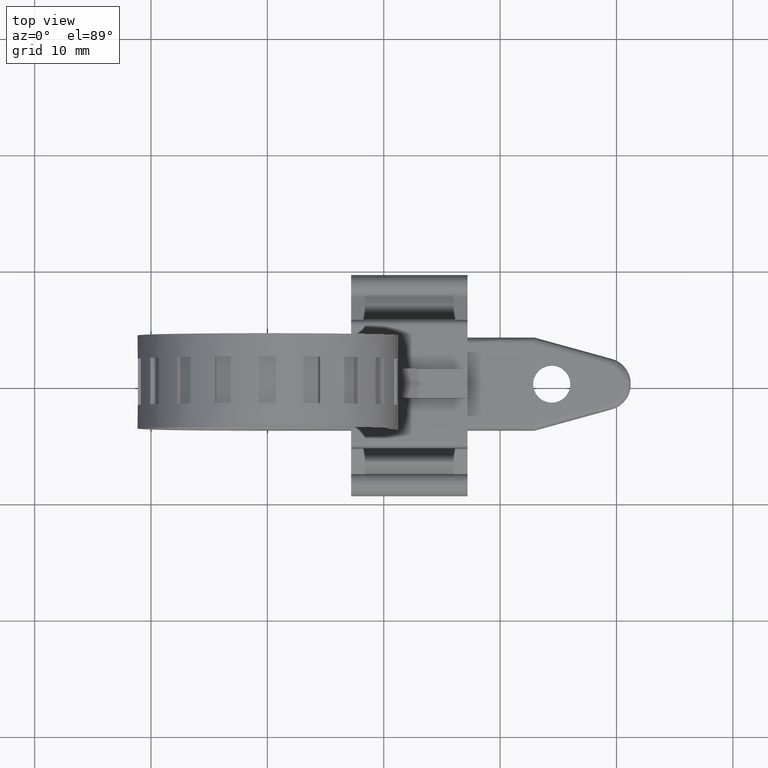
[diagram: clean part render]
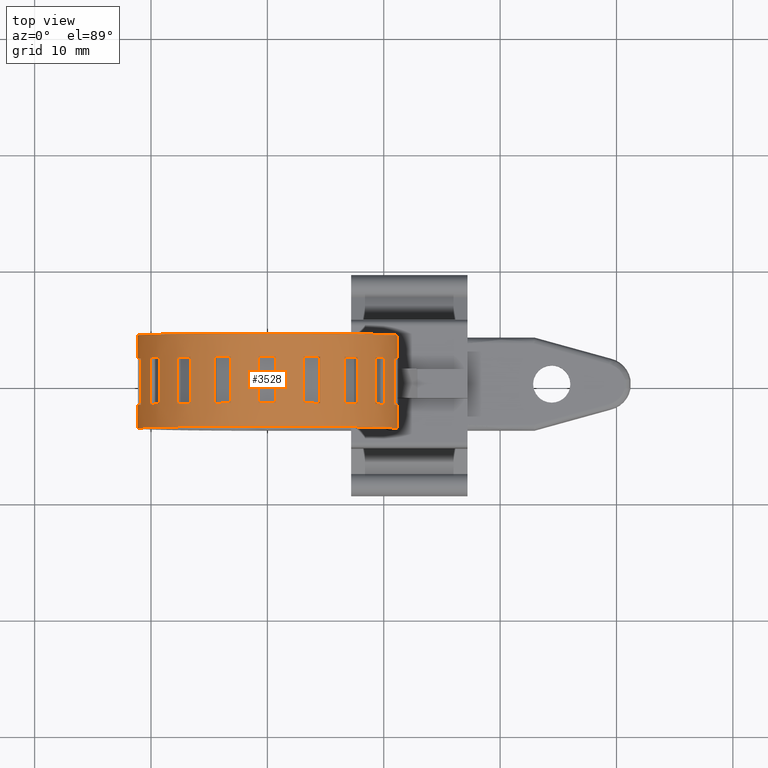
[diagram: same view with one face highlighted and labeled with its STEP entity id]
A machine part, top view. The second image highlights one B-rep face of the part: STEP entity #3528.
In plain terms, the highlighted face is a freeform B-spline surface patch.
Its self-contained STEP definition (entity closure, byte-faithful):
#1247=CARTESIAN_POINT('',(0.0,-2.0,-11.199999999999880));
#1248=VERTEX_POINT('',#1247);
#1254=CARTESIAN_POINT('',(-0.750000000000000,-2.0,-11.174860178096161));
#1255=VERTEX_POINT('',#1254);
#1256=CARTESIAN_POINT('',(0.0,-2.0,-11.199999999999880));
#1257=CARTESIAN_POINT('',(-0.250187271056418,-2.000000000000001,-11.200001043256970));
#1258=CARTESIAN_POINT('',(-0.500374567385685,-2.000000000000001,-11.191614302703069));
#1259=CARTESIAN_POINT('',(-0.750000000000000,-2.0,-11.174860178096161));
#1260=B_SPLINE_CURVE_WITH_KNOTS('',3,(#1256,#1257,#1258,#1259),.UNSPECIFIED.,.F.,.U.,(4,4),(5.774903E-011,0.750563855465260),.UNSPECIFIED.);
#1261=EDGE_CURVE('',#1248,#1255,#1260,.T.);
#1290=CARTESIAN_POINT('',(-0.750000000000000,2.0,-11.174860178096161));
#1291=VERTEX_POINT('',#1290);
#1297=CARTESIAN_POINT('',(0.0,2.0,-11.199999999999999));
#1298=VERTEX_POINT('',#1297);
#1299=CARTESIAN_POINT('',(0.0,2.0,-11.199999999999999));
#1300=CARTESIAN_POINT('',(-0.250187271056418,1.999999999999998,-11.200001043257011));
#1301=CARTESIAN_POINT('',(-0.500374567385682,2.0,-11.191614302703060));
#1302=CARTESIAN_POINT('',(-0.750000000000000,2.0,-11.174860178096161));
#1303=B_SPLINE_CURVE_WITH_KNOTS('',3,(#1299,#1300,#1301,#1302),.UNSPECIFIED.,.F.,.U.,(4,4),(5.774725E-011,0.750563855465263),.UNSPECIFIED.);
#1304=EDGE_CURVE('',#1298,#1291,#1303,.T.);
#1319=CARTESIAN_POINT('',(-0.750000000000000,-2.0,-11.174860178096161));
#1320=CARTESIAN_POINT('',(-0.750000000000000,2.0,-11.174860178096161));
#1321=QUASI_UNIFORM_CURVE('',1,(#1319,#1320),.UNSPECIFIED.,.F.,.U.);
#1322=EDGE_CURVE('',#1255,#1291,#1321,.T.);
#1387=CARTESIAN_POINT('',(-3.117257814167320,-2.0,-10.757448755165520));
#1388=VERTEX_POINT('',#1387);
#1389=CARTESIAN_POINT('',(-4.526796745346190,-2.0,-10.244418540177019));
#1390=VERTEX_POINT('',#1389);
#1391=CARTESIAN_POINT('',(-3.117257814167320,-2.0,-10.757448755165520));
#1392=CARTESIAN_POINT('',(-3.597864011099468,-1.999999999999998,-10.618190867376519));
#1393=CARTESIAN_POINT('',(-4.069119394183680,-2.000000000000011,-10.446672816022700));
#1394=CARTESIAN_POINT('',(-4.526796745346190,-2.0,-10.244418540177019));
#1395=B_SPLINE_CURVE_WITH_KNOTS('',3,(#1391,#1392,#1393,#1394),.UNSPECIFIED.,.F.,.U.,(4,4),(1.347966E-010,1.501127710949779),.UNSPECIFIED.);
#1396=EDGE_CURVE('',#1388,#1390,#1395,.T.);
#1417=CARTESIAN_POINT('',(-3.117257814167320,2.0,-10.757448755165520));
#1418=VERTEX_POINT('',#1417);
#1425=CARTESIAN_POINT('',(-4.526796745346190,2.0,-10.244418540177019));
#1426=VERTEX_POINT('',#1425);
#1432=CARTESIAN_POINT('',(-3.117257814167320,2.0,-10.757448755165520));
#1433=CARTESIAN_POINT('',(-3.597864011099468,1.999999999999998,-10.618190867376519));
#1434=CARTESIAN_POINT('',(-4.069119394183680,2.000000000000011,-10.446672816022700));
#1435=CARTESIAN_POINT('',(-4.526796745346190,2.0,-10.244418540177019));
#1436=B_SPLINE_CURVE_WITH_KNOTS('',3,(#1432,#1433,#1434,#1435),.UNSPECIFIED.,.F.,.U.,(4,4),(1.347966E-010,1.501127710949779),.UNSPECIFIED.);
#1437=EDGE_CURVE('',#1418,#1426,#1436,.T.);
#1447=CARTESIAN_POINT('',(-4.526796745346190,-2.0,-10.244418540177019));
#1448=CARTESIAN_POINT('',(-4.526796745346190,2.0,-10.244418540177019));
#1449=QUASI_UNIFORM_CURVE('',1,(#1447,#1448),.UNSPECIFIED.,.F.,.U.);
#1450=EDGE_CURVE('',#1390,#1426,#1449,.T.);
#1463=CARTESIAN_POINT('',(-3.117257814167320,2.0,-10.757448755165520));
#1464=CARTESIAN_POINT('',(-3.117257814167320,-2.0,-10.757448755165520));
#1465=QUASI_UNIFORM_CURVE('',1,(#1463,#1464),.UNSPECIFIED.,.F.,.U.);
#1466=EDGE_CURVE('',#1418,#1388,#1465,.T.);
#1515=CARTESIAN_POINT('',(-6.608528330120491,-2.0,-9.042530249327031));
#1516=VERTEX_POINT('',#1515);
#1517=CARTESIAN_POINT('',(-7.757594994798960,-2.0,-8.078348834797220));
#1518=VERTEX_POINT('',#1517);
#1519=CARTESIAN_POINT('',(-6.608528330120491,-2.0,-9.042530249327031));
#1520=CARTESIAN_POINT('',(-7.012521426680162,-1.999999999999999,-8.747293671762556));
#1521=CARTESIAN_POINT('',(-7.396693912800759,-1.999999999999999,-8.424940594192325));
#1522=CARTESIAN_POINT('',(-7.757594994798960,-2.0,-8.078348834797220));
#1523=B_SPLINE_CURVE_WITH_KNOTS('',3,(#1519,#1520,#1521,#1522),.UNSPECIFIED.,.F.,.U.,(4,4),(1.348550E-010,1.501127710949775),.UNSPECIFIED.);
#1524=EDGE_CURVE('',#1516,#1518,#1523,.T.);
#1545=CARTESIAN_POINT('',(-6.608528330120491,2.0,-9.042530249327031));
#1546=VERTEX_POINT('',#1545);
#1553=CARTESIAN_POINT('',(-7.757594994798960,2.0,-8.078348834797220));
#1554=VERTEX_POINT('',#1553);
#1560=CARTESIAN_POINT('',(-6.608528330120491,2.0,-9.042530249327031));
#1561=CARTESIAN_POINT('',(-7.012521426680162,1.999999999999999,-8.747293671762556));
#1562=CARTESIAN_POINT('',(-7.396693912800759,1.999999999999999,-8.424940594192325));
#1563=CARTESIAN_POINT('',(-7.757594994798960,2.0,-8.078348834797220));
#1564=B_SPLINE_CURVE_WITH_KNOTS('',3,(#1560,#1561,#1562,#1563),.UNSPECIFIED.,.F.,.U.,(4,4),(1.348550E-010,1.501127710949775),.UNSPECIFIED.);
#1565=EDGE_CURVE('',#1546,#1554,#1564,.T.);
#1575=CARTESIAN_POINT('',(-7.757594994798960,-2.0,-8.078348834797220));
#1576=CARTESIAN_POINT('',(-7.757594994798960,2.0,-8.078348834797220));
#1577=QUASI_UNIFORM_CURVE('',1,(#1575,#1576),.UNSPECIFIED.,.F.,.U.);
#1578=EDGE_CURVE('',#1518,#1554,#1577,.T.);
#1591=CARTESIAN_POINT('',(-6.608528330120491,2.0,-9.042530249327031));
#1592=CARTESIAN_POINT('',(-6.608528330120491,-2.0,-9.042530249327031));
#1593=QUASI_UNIFORM_CURVE('',1,(#1591,#1592),.UNSPECIFIED.,.F.,.U.);
#1594=EDGE_CURVE('',#1546,#1516,#1593,.T.);
#1643=CARTESIAN_POINT('',(-9.302712797970370,-2.0,-6.236949141886420));
#1644=VERTEX_POINT('',#1643);
#1645=CARTESIAN_POINT('',(-10.052712797970379,-2.0,-4.937911036209759));
#1646=VERTEX_POINT('',#1645);
#1647=CARTESIAN_POINT('',(-9.302712797970370,-2.0,-6.236949141886420));
#1648=CARTESIAN_POINT('',(-9.581365282119663,-2.0,-5.821343719645205));
#1649=CARTESIAN_POINT('',(-9.832118066007803,-1.999999999999995,-5.387036208761663));
#1650=CARTESIAN_POINT('',(-10.052712797970379,-2.0,-4.937911036209759));
#1651=B_SPLINE_CURVE_WITH_KNOTS('',3,(#1647,#1648,#1649,#1650),.UNSPECIFIED.,.F.,.U.,(4,4),(1.348912E-010,1.501127710949777),.UNSPECIFIED.);
#1652=EDGE_CURVE('',#1644,#1646,#1651,.T.);
#1673=CARTESIAN_POINT('',(-9.302712797970370,2.0,-6.236949141886420));
#1674=VERTEX_POINT('',#1673);
#1681=CARTESIAN_POINT('',(-10.052712797970379,2.0,-4.937911036209759));
#1682=VERTEX_POINT('',#1681);
#1688=CARTESIAN_POINT('',(-9.302712797970370,2.0,-6.236949141886420));
#1689=CARTESIAN_POINT('',(-9.581365282119663,2.0,-5.821343719645205));
#1690=CARTESIAN_POINT('',(-9.832118066007803,1.999999999999995,-5.387036208761663));
#1691=CARTESIAN_POINT('',(-10.052712797970379,2.0,-4.937911036209759));
#1692=B_SPLINE_CURVE_WITH_KNOTS('',3,(#1688,#1689,#1690,#1691),.UNSPECIFIED.,.F.,.U.,(4,4),(1.348912E-010,1.501127710949777),.UNSPECIFIED.);
#1693=EDGE_CURVE('',#1674,#1682,#1692,.T.);
#1703=CARTESIAN_POINT('',(-10.052712797970379,-2.0,-4.937911036209759));
#1704=CARTESIAN_POINT('',(-10.052712797970379,2.0,-4.937911036209759));
#1705=QUASI_UNIFORM_CURVE('',1,(#1703,#1704),.UNSPECIFIED.,.F.,.U.);
#1706=EDGE_CURVE('',#1646,#1682,#1705,.T.);
#1719=CARTESIAN_POINT('',(-9.302712797970370,2.0,-6.236949141886420));
#1720=CARTESIAN_POINT('',(-9.302712797970370,-2.0,-6.236949141886420));
#1721=QUASI_UNIFORM_CURVE('',1,(#1719,#1720),.UNSPECIFIED.,.F.,.U.);
#1722=EDGE_CURVE('',#1674,#1644,#1721,.T.);
#1771=CARTESIAN_POINT('',(-10.874852808966301,-2.0,-2.679099920368310));
#1772=VERTEX_POINT('',#1771);
#1773=CARTESIAN_POINT('',(-11.135325075466699,-2.0,-1.201888290849996));
#1774=VERTEX_POINT('',#1773);
#1775=CARTESIAN_POINT('',(-10.874852808966301,-2.0,-2.679099920368310));
#1776=CARTESIAN_POINT('',(-10.994555530454679,-2.0,-2.193254346802141));
#1777=CARTESIAN_POINT('',(-11.081643350986729,-2.000000000000003,-1.699374900402291));
#1778=CARTESIAN_POINT('',(-11.135325075466699,-2.0,-1.201888290849996));
#1779=B_SPLINE_CURVE_WITH_KNOTS('',3,(#1775,#1776,#1777,#1778),.UNSPECIFIED.,.F.,.U.,(4,4),(1.348710E-010,1.501127710949773),.UNSPECIFIED.);
#1780=EDGE_CURVE('',#1772,#1774,#1779,.T.);
#1801=CARTESIAN_POINT('',(-10.874852808966301,2.0,-2.679099920368310));
#1802=VERTEX_POINT('',#1801);
#1809=CARTESIAN_POINT('',(-11.135325075466699,2.0,-1.201888290849996));
#1810=VERTEX_POINT('',#1809);
#1816=CARTESIAN_POINT('',(-10.874852808966301,2.0,-2.679099920368310));
#1817=CARTESIAN_POINT('',(-10.994555530454679,2.0,-2.193254346802141));
#1818=CARTESIAN_POINT('',(-11.081643350986729,2.000000000000003,-1.699374900402291));
#1819=CARTESIAN_POINT('',(-11.135325075466699,2.0,-1.201888290849996));
#1820=B_SPLINE_CURVE_WITH_KNOTS('',3,(#1816,#1817,#1818,#1819),.UNSPECIFIED.,.F.,.U.,(4,4),(1.348710E-010,1.501127710949773),.UNSPECIFIED.);
#1821=EDGE_CURVE('',#1802,#1810,#1820,.T.);
#1831=CARTESIAN_POINT('',(-11.135325075466699,-2.0,-1.201888290849996));
#1832=CARTESIAN_POINT('',(-11.135325075466699,2.0,-1.201888290849996));
#1833=QUASI_UNIFORM_CURVE('',1,(#1831,#1832),.UNSPECIFIED.,.F.,.U.);
#1834=EDGE_CURVE('',#1774,#1810,#1833,.T.);
#1847=CARTESIAN_POINT('',(-10.874852808966301,2.0,-2.679099920368310));
#1848=CARTESIAN_POINT('',(-10.874852808966301,-2.0,-2.679099920368310));
#1849=QUASI_UNIFORM_CURVE('',1,(#1847,#1848),.UNSPECIFIED.,.F.,.U.);
#1850=EDGE_CURVE('',#1802,#1772,#1849,.T.);
#1899=CARTESIAN_POINT('',(-11.135325075466699,-2.0,1.201888290849988));
#1900=VERTEX_POINT('',#1899);
#1901=CARTESIAN_POINT('',(-10.874852808966301,-2.0,2.679099920368300));
#1902=VERTEX_POINT('',#1901);
#1903=CARTESIAN_POINT('',(-11.135325075466699,-2.0,1.201888290849988));
#1904=CARTESIAN_POINT('',(-11.081639843272820,-2.000000000000001,1.699374648524388));
#1905=CARTESIAN_POINT('',(-10.994558988240820,-1.999999999999998,2.193255015704151));
#1906=CARTESIAN_POINT('',(-10.874852808966301,-2.0,2.679099920368300));
#1907=B_SPLINE_CURVE_WITH_KNOTS('',3,(#1903,#1904,#1905,#1906),.UNSPECIFIED.,.F.,.U.,(4,4),(1.348237E-010,1.501127710949771),.UNSPECIFIED.);
#1908=EDGE_CURVE('',#1900,#1902,#1907,.T.);
#1929=CARTESIAN_POINT('',(-11.135325075466699,2.0,1.201888290849988));
#1930=VERTEX_POINT('',#1929);
#1937=CARTESIAN_POINT('',(-10.874852808966301,2.0,2.679099920368300));
#1938=VERTEX_POINT('',#1937);
#1944=CARTESIAN_POINT('',(-11.135325075466699,2.0,1.201888290849988));
#1945=CARTESIAN_POINT('',(-11.081639843272820,2.000000000000001,1.699374648524388));
#1946=CARTESIAN_POINT('',(-10.994558988240820,1.999999999999998,2.193255015704151));
#1947=CARTESIAN_POINT('',(-10.874852808966301,2.0,2.679099920368300));
#1948=B_SPLINE_CURVE_WITH_KNOTS('',3,(#1944,#1945,#1946,#1947),.UNSPECIFIED.,.F.,.U.,(4,4),(1.348237E-010,1.501127710949771),.UNSPECIFIED.);
#1949=EDGE_CURVE('',#1930,#1938,#1948,.T.);
#1959=CARTESIAN_POINT('',(-10.874852808966301,-2.0,2.679099920368300));
#1960=CARTESIAN_POINT('',(-10.874852808966301,2.0,2.679099920368300));
#1961=QUASI_UNIFORM_CURVE('',1,(#1959,#1960),.UNSPECIFIED.,.F.,.U.);
#1962=EDGE_CURVE('',#1902,#1938,#1961,.T.);
#1975=CARTESIAN_POINT('',(-11.135325075466699,2.0,1.201888290849988));
#1976=CARTESIAN_POINT('',(-11.135325075466699,-2.0,1.201888290849988));
#1977=QUASI_UNIFORM_CURVE('',1,(#1975,#1976),.UNSPECIFIED.,.F.,.U.);
#1978=EDGE_CURVE('',#1930,#1900,#1977,.T.);
#2027=CARTESIAN_POINT('',(-10.052712797970379,-2.0,4.937911036209750));
#2028=VERTEX_POINT('',#2027);
#2029=CARTESIAN_POINT('',(-9.302712797970381,-2.0,6.236949141886410));
#2030=VERTEX_POINT('',#2029);
#2031=CARTESIAN_POINT('',(-10.052712797970379,-2.0,4.937911036209750));
#2032=CARTESIAN_POINT('',(-9.832114186433559,-2.0,5.387033877431266));
#2033=CARTESIAN_POINT('',(-9.581369240898177,-2.000000000000003,5.821345913789861));
#2034=CARTESIAN_POINT('',(-9.302712797970381,-2.0,6.236949141886410));
#2035=B_SPLINE_CURVE_WITH_KNOTS('',3,(#2031,#2032,#2033,#2034),.UNSPECIFIED.,.F.,.U.,(4,4),(1.348577E-010,1.501127710949773),.UNSPECIFIED.);
#2036=EDGE_CURVE('',#2028,#2030,#2035,.T.);
#2057=CARTESIAN_POINT('',(-10.052712797970379,2.0,4.937911036209750));
#2058=VERTEX_POINT('',#2057);
#2065=CARTESIAN_POINT('',(-9.302712797970381,2.0,6.236949141886410));
#2066=VERTEX_POINT('',#2065);
#2072=CARTESIAN_POINT('',(-10.052712797970379,2.0,4.937911036209750));
#2073=CARTESIAN_POINT('',(-9.832114186433559,2.0,5.387033877431266));
#2074=CARTESIAN_POINT('',(-9.581369240898177,2.000000000000003,5.821345913789861));
#2075=CARTESIAN_POINT('',(-9.302712797970381,2.0,6.236949141886410));
#2076=B_SPLINE_CURVE_WITH_KNOTS('',3,(#2072,#2073,#2074,#2075),.UNSPECIFIED.,.F.,.U.,(4,4),(1.348577E-010,1.501127710949773),.UNSPECIFIED.);
#2077=EDGE_CURVE('',#2058,#2066,#2076,.T.);
#2087=CARTESIAN_POINT('',(-9.302712797970381,-2.0,6.236949141886410));
#2088=CARTESIAN_POINT('',(-9.302712797970381,2.0,6.236949141886410));
#2089=QUASI_UNIFORM_CURVE('',1,(#2087,#2088),.UNSPECIFIED.,.F.,.U.);
#2090=EDGE_CURVE('',#2030,#2066,#2089,.T.);
#2103=CARTESIAN_POINT('',(-10.052712797970379,2.0,4.937911036209750));
#2104=CARTESIAN_POINT('',(-10.052712797970379,-2.0,4.937911036209750));
#2105=QUASI_UNIFORM_CURVE('',1,(#2103,#2104),.UNSPECIFIED.,.F.,.U.);
#2106=EDGE_CURVE('',#2058,#2028,#2105,.T.);
#2155=CARTESIAN_POINT('',(-7.757594994798970,-2.0,8.078348834797220));
#2156=VERTEX_POINT('',#2155);
#2157=CARTESIAN_POINT('',(-6.608528330120500,-2.0,9.042530249327031));
#2158=VERTEX_POINT('',#2157);
#2159=CARTESIAN_POINT('',(-7.757594994798970,-2.0,8.078348834797220));
#2160=CARTESIAN_POINT('',(-7.396695497991988,-2.000000000000028,8.424941225103666));
#2161=CARTESIAN_POINT('',(-7.012519902264220,-1.999999999999981,8.747293210652860));
#2162=CARTESIAN_POINT('',(-6.608528330120500,-2.0,9.042530249327031));
#2163=B_SPLINE_CURVE_WITH_KNOTS('',3,(#2159,#2160,#2161,#2162),.UNSPECIFIED.,.F.,.U.,(4,4),(1.348692E-010,1.501127710949775),.UNSPECIFIED.);
#2164=EDGE_CURVE('',#2156,#2158,#2163,.T.);
#2185=CARTESIAN_POINT('',(-7.757594994798970,2.0,8.078348834797220));
#2186=VERTEX_POINT('',#2185);
#2193=CARTESIAN_POINT('',(-6.608528330120500,2.0,9.042530249327031));
#2194=VERTEX_POINT('',#2193);
#2200=CARTESIAN_POINT('',(-7.757594994798970,2.0,8.078348834797220));
#2201=CARTESIAN_POINT('',(-7.396695497991988,2.000000000000028,8.424941225103666));
#2202=CARTESIAN_POINT('',(-7.012519902264220,1.999999999999981,8.747293210652860));
#2203=CARTESIAN_POINT('',(-6.608528330120500,2.0,9.042530249327031));
#2204=B_SPLINE_CURVE_WITH_KNOTS('',3,(#2200,#2201,#2202,#2203),.UNSPECIFIED.,.F.,.U.,(4,4),(1.348692E-010,1.501127710949775),.UNSPECIFIED.);
#2205=EDGE_CURVE('',#2186,#2194,#2204,.T.);
#2215=CARTESIAN_POINT('',(-6.608528330120500,-2.0,9.042530249327031));
#2216=CARTESIAN_POINT('',(-6.608528330120500,2.0,9.042530249327031));
#2217=QUASI_UNIFORM_CURVE('',1,(#2215,#2216),.UNSPECIFIED.,.F.,.U.);
#2218=EDGE_CURVE('',#2158,#2194,#2217,.T.);
#2231=CARTESIAN_POINT('',(-7.757594994798970,2.0,8.078348834797220));
#2232=CARTESIAN_POINT('',(-7.757594994798970,-2.0,8.078348834797220));
#2233=QUASI_UNIFORM_CURVE('',1,(#2231,#2232),.UNSPECIFIED.,.F.,.U.);
#2234=EDGE_CURVE('',#2186,#2156,#2233,.T.);
#2283=CARTESIAN_POINT('',(-4.526796745346190,-2.0,10.244418540177019));
#2284=VERTEX_POINT('',#2283);
#2285=CARTESIAN_POINT('',(-3.117257814167330,-2.0,10.757448755165520));
#2286=VERTEX_POINT('',#2285);
#2287=CARTESIAN_POINT('',(-4.526796745346190,-2.0,10.244418540177019));
#2288=CARTESIAN_POINT('',(-4.069119395179140,-1.999999999999998,10.446672818699980));
#2289=CARTESIAN_POINT('',(-3.597864010586134,-1.999999999999997,10.618190866011391));
#2290=CARTESIAN_POINT('',(-3.117257814167330,-2.0,10.757448755165520));
#2291=B_SPLINE_CURVE_WITH_KNOTS('',3,(#2287,#2288,#2289,#2290),.UNSPECIFIED.,.F.,.U.,(4,4),(1.348195E-010,1.501127710949769),.UNSPECIFIED.);
#2292=EDGE_CURVE('',#2284,#2286,#2291,.T.);
#2313=CARTESIAN_POINT('',(-4.526796745346190,2.0,10.244418540177019));
#2314=VERTEX_POINT('',#2313);
#2321=CARTESIAN_POINT('',(-3.117257814167330,2.0,10.757448755165520));
#2322=VERTEX_POINT('',#2321);
#2328=CARTESIAN_POINT('',(-4.526796745346190,2.0,10.244418540177019));
#2329=CARTESIAN_POINT('',(-4.069119395179140,1.999999999999998,10.446672818699980));
#2330=CARTESIAN_POINT('',(-3.597864010586134,1.999999999999997,10.618190866011391));
#2331=CARTESIAN_POINT('',(-3.117257814167330,2.0,10.757448755165520));
#2332=B_SPLINE_CURVE_WITH_KNOTS('',3,(#2328,#2329,#2330,#2331),.UNSPECIFIED.,.F.,.U.,(4,4),(1.348195E-010,1.501127710949769),.UNSPECIFIED.);
#2333=EDGE_CURVE('',#2314,#2322,#2332,.T.);
#2343=CARTESIAN_POINT('',(-3.117257814167330,-2.0,10.757448755165520));
#2344=CARTESIAN_POINT('',(-3.117257814167330,2.0,10.757448755165520));
#2345=QUASI_UNIFORM_CURVE('',1,(#2343,#2344),.UNSPECIFIED.,.F.,.U.);
#2346=EDGE_CURVE('',#2286,#2322,#2345,.T.);
#2359=CARTESIAN_POINT('',(-4.526796745346190,2.0,10.244418540177019));
#2360=CARTESIAN_POINT('',(-4.526796745346190,-2.0,10.244418540177019));
#2361=QUASI_UNIFORM_CURVE('',1,(#2359,#2360),.UNSPECIFIED.,.F.,.U.);
#2362=EDGE_CURVE('',#2314,#2284,#2361,.T.);
#2535=CARTESIAN_POINT('',(10.874852808966301,-2.0,2.679099920368300));
#2536=VERTEX_POINT('',#2535);
#2537=CARTESIAN_POINT('',(11.135325075466699,-2.0,1.201888290849990));
#2538=VERTEX_POINT('',#2537);
#2539=CARTESIAN_POINT('',(10.874852808966301,-2.0,2.679099920368300));
#2540=CARTESIAN_POINT('',(10.994558930103050,-1.999999999999997,2.193255193331584));
#2541=CARTESIAN_POINT('',(11.081639866832109,-2.000000000000002,1.699374533131535));
#2542=CARTESIAN_POINT('',(11.135325075466699,-2.0,1.201888290849990));
#2543=B_SPLINE_CURVE_WITH_KNOTS('',3,(#2539,#2540,#2541,#2542),.UNSPECIFIED.,.F.,.U.,(4,4),(1.348530E-010,1.501127710949770),.UNSPECIFIED.);
#2544=EDGE_CURVE('',#2536,#2538,#2543,.T.);
#2565=CARTESIAN_POINT('',(10.874852808966301,2.0,2.679099920368300));
#2566=VERTEX_POINT('',#2565);
#2573=CARTESIAN_POINT('',(11.135325075466699,2.0,1.201888290849990));
#2574=VERTEX_POINT('',#2573);
#2580=CARTESIAN_POINT('',(10.874852808966301,2.0,2.679099920368300));
#2581=CARTESIAN_POINT('',(10.994558930103050,1.999999999999997,2.193255193331584));
#2582=CARTESIAN_POINT('',(11.081639866832109,2.000000000000002,1.699374533131535));
#2583=CARTESIAN_POINT('',(11.135325075466699,2.0,1.201888290849990));
#2584=B_SPLINE_CURVE_WITH_KNOTS('',3,(#2580,#2581,#2582,#2583),.UNSPECIFIED.,.F.,.U.,(4,4),(1.348530E-010,1.501127710949770),.UNSPECIFIED.);
#2585=EDGE_CURVE('',#2566,#2574,#2584,.T.);
#2595=CARTESIAN_POINT('',(11.135325075466699,-2.0,1.201888290849990));
#2596=CARTESIAN_POINT('',(11.135325075466699,2.0,1.201888290849990));
#2597=QUASI_UNIFORM_CURVE('',1,(#2595,#2596),.UNSPECIFIED.,.F.,.U.);
#2598=EDGE_CURVE('',#2538,#2574,#2597,.T.);
#2611=CARTESIAN_POINT('',(10.874852808966301,2.0,2.679099920368300));
#2612=CARTESIAN_POINT('',(10.874852808966301,-2.0,2.679099920368300));
#2613=QUASI_UNIFORM_CURVE('',1,(#2611,#2612),.UNSPECIFIED.,.F.,.U.);
#2614=EDGE_CURVE('',#2566,#2536,#2613,.T.);
#2663=CARTESIAN_POINT('',(9.302712797970381,-2.0,6.236949141886410));
#2664=VERTEX_POINT('',#2663);
#2665=CARTESIAN_POINT('',(10.052712797970379,-2.0,4.937911036209750));
#2666=VERTEX_POINT('',#2665);
#2667=CARTESIAN_POINT('',(9.302712797970381,-2.0,6.236949141886410));
#2668=CARTESIAN_POINT('',(9.581365590871902,-1.999999999999999,5.821344279985047));
#2669=CARTESIAN_POINT('',(9.832117966463214,-2.0,5.387035474485944));
#2670=CARTESIAN_POINT('',(10.052712797970379,-2.0,4.937911036209750));
#2671=B_SPLINE_CURVE_WITH_KNOTS('',3,(#2667,#2668,#2669,#2670),.UNSPECIFIED.,.F.,.U.,(4,4),(1.349192E-010,1.501127710949773),.UNSPECIFIED.);
#2672=EDGE_CURVE('',#2664,#2666,#2671,.T.);
#2693=CARTESIAN_POINT('',(9.302712797970381,2.0,6.236949141886410));
#2694=VERTEX_POINT('',#2693);
#2701=CARTESIAN_POINT('',(10.052712797970379,2.0,4.937911036209750));
#2702=VERTEX_POINT('',#2701);
#2708=CARTESIAN_POINT('',(9.302712797970381,2.0,6.236949141886410));
#2709=CARTESIAN_POINT('',(9.581365590871902,1.999999999999999,5.821344279985047));
#2710=CARTESIAN_POINT('',(9.832117966463214,2.0,5.387035474485944));
#2711=CARTESIAN_POINT('',(10.052712797970379,2.0,4.937911036209750));
#2712=B_SPLINE_CURVE_WITH_KNOTS('',3,(#2708,#2709,#2710,#2711),.UNSPECIFIED.,.F.,.U.,(4,4),(1.349192E-010,1.501127710949773),.UNSPECIFIED.);
#2713=EDGE_CURVE('',#2694,#2702,#2712,.T.);
#2723=CARTESIAN_POINT('',(10.052712797970379,-2.0,4.937911036209750));
#2724=CARTESIAN_POINT('',(10.052712797970379,2.0,4.937911036209750));
#2725=QUASI_UNIFORM_CURVE('',1,(#2723,#2724),.UNSPECIFIED.,.F.,.U.);
#2726=EDGE_CURVE('',#2666,#2702,#2725,.T.);
#2739=CARTESIAN_POINT('',(9.302712797970381,2.0,6.236949141886410));
#2740=CARTESIAN_POINT('',(9.302712797970381,-2.0,6.236949141886410));
#2741=QUASI_UNIFORM_CURVE('',1,(#2739,#2740),.UNSPECIFIED.,.F.,.U.);
#2742=EDGE_CURVE('',#2694,#2664,#2741,.T.);
#2791=CARTESIAN_POINT('',(6.608528330120500,-2.0,9.042530249327031));
#2792=VERTEX_POINT('',#2791);
#2793=CARTESIAN_POINT('',(7.757594994798970,-2.0,8.078348834797220));
#2794=VERTEX_POINT('',#2793);
#2795=CARTESIAN_POINT('',(6.608528330120500,-2.0,9.042530249327031));
#2796=CARTESIAN_POINT('',(7.012523665561218,-1.999999999999993,8.747297105185337));
#2797=CARTESIAN_POINT('',(7.396691656457088,-2.000000000000001,8.424937295166037));
#2798=CARTESIAN_POINT('',(7.757594994798970,-2.0,8.078348834797220));
#2799=B_SPLINE_CURVE_WITH_KNOTS('',3,(#2795,#2796,#2797,#2798),.UNSPECIFIED.,.F.,.U.,(4,4),(1.348603E-010,1.501127710949775),.UNSPECIFIED.);
#2800=EDGE_CURVE('',#2792,#2794,#2799,.T.);
#2821=CARTESIAN_POINT('',(6.608528330120500,2.0,9.042530249327031));
#2822=VERTEX_POINT('',#2821);
#2829=CARTESIAN_POINT('',(7.757594994798970,2.0,8.078348834797220));
#2830=VERTEX_POINT('',#2829);
#2836=CARTESIAN_POINT('',(6.608528330120500,2.0,9.042530249327031));
#2837=CARTESIAN_POINT('',(7.012523665561218,1.999999999999993,8.747297105185337));
#2838=CARTESIAN_POINT('',(7.396691656457088,2.000000000000001,8.424937295166037));
#2839=CARTESIAN_POINT('',(7.757594994798970,2.0,8.078348834797220));
#2840=B_SPLINE_CURVE_WITH_KNOTS('',3,(#2836,#2837,#2838,#2839),.UNSPECIFIED.,.F.,.U.,(4,4),(1.348603E-010,1.501127710949775),.UNSPECIFIED.);
#2841=EDGE_CURVE('',#2822,#2830,#2840,.T.);
#2851=CARTESIAN_POINT('',(7.757594994798970,-2.0,8.078348834797220));
#2852=CARTESIAN_POINT('',(7.757594994798970,2.0,8.078348834797220));
#2853=QUASI_UNIFORM_CURVE('',1,(#2851,#2852),.UNSPECIFIED.,.F.,.U.);
#2854=EDGE_CURVE('',#2794,#2830,#2853,.T.);
#2867=CARTESIAN_POINT('',(6.608528330120500,2.0,9.042530249327031));
#2868=CARTESIAN_POINT('',(6.608528330120500,-2.0,9.042530249327031));
#2869=QUASI_UNIFORM_CURVE('',1,(#2867,#2868),.UNSPECIFIED.,.F.,.U.);
#2870=EDGE_CURVE('',#2822,#2792,#2869,.T.);
#2919=CARTESIAN_POINT('',(3.117257814167330,-2.0,10.757448755165520));
#2920=VERTEX_POINT('',#2919);
#2921=CARTESIAN_POINT('',(4.526796745346190,-2.0,10.244418540177019));
#2922=VERTEX_POINT('',#2921);
#2923=CARTESIAN_POINT('',(3.117257814167330,-2.0,10.757448755165520));
#2924=CARTESIAN_POINT('',(3.597864016660973,-2.0,10.618190893857079));
#2925=CARTESIAN_POINT('',(4.069119281489389,-1.999999999999994,10.446672824723510));
#2926=CARTESIAN_POINT('',(4.526796745346190,-2.0,10.244418540177019));
#2927=B_SPLINE_CURVE_WITH_KNOTS('',3,(#2923,#2924,#2925,#2926),.UNSPECIFIED.,.F.,.U.,(4,4),(1.347553E-010,1.501127710949768),.UNSPECIFIED.);
#2928=EDGE_CURVE('',#2920,#2922,#2927,.T.);
#2949=CARTESIAN_POINT('',(3.117257814167330,2.0,10.757448755165520));
#2950=VERTEX_POINT('',#2949);
#2957=CARTESIAN_POINT('',(4.526796745346190,2.0,10.244418540177019));
#2958=VERTEX_POINT('',#2957);
#2964=CARTESIAN_POINT('',(3.117257814167330,2.0,10.757448755165520));
#2965=CARTESIAN_POINT('',(3.597864016660973,2.0,10.618190893857079));
#2966=CARTESIAN_POINT('',(4.069119281489389,1.999999999999994,10.446672824723510));
#2967=CARTESIAN_POINT('',(4.526796745346190,2.0,10.244418540177019));
#2968=B_SPLINE_CURVE_WITH_KNOTS('',3,(#2964,#2965,#2966,#2967),.UNSPECIFIED.,.F.,.U.,(4,4),(1.347553E-010,1.501127710949768),.UNSPECIFIED.);
#2969=EDGE_CURVE('',#2950,#2958,#2968,.T.);
#2979=CARTESIAN_POINT('',(4.526796745346190,-2.0,10.244418540177019));
#2980=CARTESIAN_POINT('',(4.526796745346190,2.0,10.244418540177019));
#2981=QUASI_UNIFORM_CURVE('',1,(#2979,#2980),.UNSPECIFIED.,.F.,.U.);
#2982=EDGE_CURVE('',#2922,#2958,#2981,.T.);
#2995=CARTESIAN_POINT('',(3.117257814167330,2.0,10.757448755165520));
#2996=CARTESIAN_POINT('',(3.117257814167330,-2.0,10.757448755165520));
#2997=QUASI_UNIFORM_CURVE('',1,(#2995,#2996),.UNSPECIFIED.,.F.,.U.);
#2998=EDGE_CURVE('',#2950,#2920,#2997,.T.);
#3047=CARTESIAN_POINT('',(-0.750000000000000,-2.0,11.174860178096161));
#3048=VERTEX_POINT('',#3047);
#3049=CARTESIAN_POINT('',(0.750000000000000,-2.0,11.174860178096161));
#3050=VERTEX_POINT('',#3049);
#3051=CARTESIAN_POINT('',(-0.750000000000000,-2.0,11.174860178096161));
#3052=CARTESIAN_POINT('',(-0.250748630196384,-2.0,11.208377949978241));
#3053=CARTESIAN_POINT('',(0.250748411129346,-2.000000000000002,11.208381735998019));
#3054=CARTESIAN_POINT('',(0.750000000000000,-2.0,11.174860178096161));
#3055=B_SPLINE_CURVE_WITH_KNOTS('',3,(#3051,#3052,#3053,#3054),.UNSPECIFIED.,.F.,.U.,(4,4),(1.348484E-010,1.501127710949771),.UNSPECIFIED.);
#3056=EDGE_CURVE('',#3048,#3050,#3055,.T.);
#3077=CARTESIAN_POINT('',(-0.750000000000000,2.0,11.174860178096161));
#3078=VERTEX_POINT('',#3077);
#3085=CARTESIAN_POINT('',(0.750000000000000,2.0,11.174860178096161));
#3086=VERTEX_POINT('',#3085);
#3092=CARTESIAN_POINT('',(-0.750000000000000,2.0,11.174860178096161));
#3093=CARTESIAN_POINT('',(-0.250748630196384,2.0,11.208377949978241));
#3094=CARTESIAN_POINT('',(0.250748411129346,2.000000000000002,11.208381735998019));
#3095=CARTESIAN_POINT('',(0.750000000000000,2.0,11.174860178096161));
#3096=B_SPLINE_CURVE_WITH_KNOTS('',3,(#3092,#3093,#3094,#3095),.UNSPECIFIED.,.F.,.U.,(4,4),(1.348484E-010,1.501127710949771),.UNSPECIFIED.);
#3097=EDGE_CURVE('',#3078,#3086,#3096,.T.);
#3107=CARTESIAN_POINT('',(0.750000000000000,-2.0,11.174860178096161));
#3108=CARTESIAN_POINT('',(0.750000000000000,2.0,11.174860178096161));
#3109=QUASI_UNIFORM_CURVE('',1,(#3107,#3108),.UNSPECIFIED.,.F.,.U.);
#3110=EDGE_CURVE('',#3050,#3086,#3109,.T.);
#3123=CARTESIAN_POINT('',(-0.750000000000000,2.0,11.174860178096161));
#3124=CARTESIAN_POINT('',(-0.750000000000000,-2.0,11.174860178096161));
#3125=QUASI_UNIFORM_CURVE('',1,(#3123,#3124),.UNSPECIFIED.,.F.,.U.);
#3126=EDGE_CURVE('',#3078,#3048,#3125,.T.);
#3304=CARTESIAN_POINT('',(11.199573538318720,-4.200000000000000,-0.097737197581778));
#3305=CARTESIAN_POINT('',(11.199573538318720,4.205000000000000,-0.097737197581778));
#3306=CARTESIAN_POINT('',(11.299612064800586,-4.200000000000001,11.365542512902019));
#3307=CARTESIAN_POINT('',(11.299612064800586,4.205000000000000,11.365542512902019));
#3308=CARTESIAN_POINT('',(-0.162891653697733,-4.200000000000000,11.198815397583600));
#3309=CARTESIAN_POINT('',(-0.162891653697733,4.205000000000000,11.198815397583600));
#3310=CARTESIAN_POINT('',(-11.625395372196053,-4.200000000000001,11.032088282265182));
#3311=CARTESIAN_POINT('',(-11.625395372196053,4.205000000000000,11.032088282265182));
#3312=CARTESIAN_POINT('',(-11.191992900751540,-4.200000000000000,-0.423432296273185));
#3313=CARTESIAN_POINT('',(-11.191992900751540,4.205000000000000,-0.423432296273185));
#3314=CARTESIAN_POINT('',(-10.758590429307018,-4.200000000000001,-11.878952874811553));
#3315=CARTESIAN_POINT('',(-10.758590429307018,4.205000000000000,-11.878952874811553));
#3316=CARTESIAN_POINT('',(0.683743642790402,-4.200000000000000,-11.179109742324910));
#3317=CARTESIAN_POINT('',(0.683743642790402,4.205000000000000,-11.179109742324910));
#3325=(BOUNDED_SURFACE()B_SPLINE_SURFACE(1,2,((#3304,#3306,#3308,#3310,#3312,#3314,#3316),(#3305,#3307,#3309,#3311,#3313,#3315,#3317)),.UNSPECIFIED.,.F.,.F.,.U.)B_SPLINE_SURFACE_WITH_KNOTS((2,2),(3,2,2,3),(0.0,8.405000000000001),(0.0,18.862862548937290,37.725725097874580,56.588587646811867),.UNSPECIFIED.)GEOMETRIC_REPRESENTATION_ITEM()RATIONAL_B_SPLINE_SURFACE(((1.0,0.698831540367900,1.0,0.698831540367900,1.0,0.698831540367900,1.0),(1.0,0.698831540367900,1.0,0.698831540367900,1.0,0.698831540367900,1.0)))REPRESENTATION_ITEM('')SURFACE());
#3326=CARTESIAN_POINT('',(0.0,4.0,-11.199999999999880));
#3327=VERTEX_POINT('',#3326);
#3328=CARTESIAN_POINT('',(0.0,2.0,-11.199999999999999));
#3329=CARTESIAN_POINT('',(0.0,4.0,-11.199999999999880));
#3330=QUASI_UNIFORM_CURVE('',1,(#3328,#3329),.UNSPECIFIED.,.F.,.U.);
#3331=EDGE_CURVE('',#1298,#3327,#3330,.T.);
#3332=ORIENTED_EDGE('',*,*,#3331,.F.);
#3333=ORIENTED_EDGE('',*,*,#1304,.T.);
#3334=ORIENTED_EDGE('',*,*,#1322,.F.);
#3335=ORIENTED_EDGE('',*,*,#1261,.F.);
#3336=CARTESIAN_POINT('',(0.0,-4.0,-11.199999999999880));
#3337=VERTEX_POINT('',#3336);
#3338=CARTESIAN_POINT('',(0.0,-4.0,-11.199999999999880));
#3339=CARTESIAN_POINT('',(0.0,-2.0,-11.199999999999880));
#3340=QUASI_UNIFORM_CURVE('',1,(#3338,#3339),.UNSPECIFIED.,.F.,.U.);
#3341=EDGE_CURVE('',#3337,#1248,#3340,.T.);
#3342=ORIENTED_EDGE('',*,*,#3341,.F.);
#3343=CARTESIAN_POINT('',(-7.919596812859408,-4.0,7.919595085719162));
#3344=VERTEX_POINT('',#3343);
#3345=CARTESIAN_POINT('',(-7.919596812859408,-4.0,7.919595085719162));
#3346=CARTESIAN_POINT('',(-8.429894631930621,-3.999999999999996,7.409410623109487));
#3347=CARTESIAN_POINT('',(-9.197728625033381,-3.999999999999997,6.476508900116661));
#3348=CARTESIAN_POINT('',(-10.081955993510880,-3.999999999999986,4.959307248819838));
#3349=CARTESIAN_POINT('',(-10.729833367307011,-4.000000000000009,3.381654268134087));
#3350=CARTESIAN_POINT('',(-11.097465838735250,-3.999999999999998,1.784686529170129));
#3351=CARTESIAN_POINT('',(-11.213375064642820,-4.000000000000001,0.361220104950053));
#3352=CARTESIAN_POINT('',(-11.187680099241989,-4.0,-0.928436381245425));
#3353=CARTESIAN_POINT('',(-11.022661715926070,-4.0,-2.122790906710114));
#3354=CARTESIAN_POINT('',(-10.679169693383320,-4.000000000000002,-3.454975342855270));
#3355=CARTESIAN_POINT('',(-10.168870567471300,-3.999999999999984,-4.790162210557360));
#3356=CARTESIAN_POINT('',(-9.433868943555094,-4.000000000000054,-6.096920629911129));
#3357=CARTESIAN_POINT('',(-8.556409883381763,-3.999999999999889,-7.266829820827486));
#3358=CARTESIAN_POINT('',(-7.618578619244306,-4.000000000000003,-8.251876339867179));
#3359=CARTESIAN_POINT('',(-6.347957398479095,-3.999999999999904,-9.281713687555605));
#3360=CARTESIAN_POINT('',(-4.797325269988676,-4.000000000000062,-10.183900822165270));
#3361=CARTESIAN_POINT('',(-3.049277986815377,-3.999999999999970,-10.826003413393330));
#3362=CARTESIAN_POINT('',(-1.443164134324604,-4.000000000000005,-11.140325967022440));
#3363=CARTESIAN_POINT('',(-0.446691802137074,-4.000000000000001,-11.200006778364250));
#3364=CARTESIAN_POINT('',(0.0,-4.0,-11.199999999999880));
#3365=B_SPLINE_CURVE_WITH_KNOTS('',3,(#3345,#3346,#3347,#3348,#3349,#3350,#3351,#3352,#3353,#3354,#3355,#3356,#3357,#3358,#3359,#3360,#3361,#3362,#3363,#3364),.UNSPECIFIED.,.F.,.U.,(4,1,1,1,1,1,1,1,1,1,1,1,1,1,1,1,1,4),(0.000000045085113,2.164752241795231,3.607919259278930,5.257257875009771,7.267397209765942,8.504405557479288,9.535245923550686,11.133036844014560,12.112340670931140,13.658559184156990,15.410978529605041,16.596452852008252,18.039622817631528,19.482798434321111,21.492937605600879,23.399983644464729,25.049322295635921,26.389400354989000),.UNSPECIFIED.);
#3366=EDGE_CURVE('',#3344,#3337,#3365,.T.);
#3367=ORIENTED_EDGE('',*,*,#3366,.F.);
#3368=CARTESIAN_POINT('',(11.199999999999999,-4.0,0.0));
#3369=VERTEX_POINT('',#3368);
#3370=CARTESIAN_POINT('',(11.199999999999999,-4.0,0.0));
#3371=CARTESIAN_POINT('',(11.200175895803810,-4.000000000000018,0.859042047418585));
#3372=CARTESIAN_POINT('',(11.045047372255830,-3.999999999999979,2.199037812897309));
#3373=CARTESIAN_POINT('',(10.555201670086600,-4.000000000000014,3.813567968320649));
#3374=CARTESIAN_POINT('',(10.053768326058901,-3.999999999999993,4.983339084010360));
#3375=CARTESIAN_POINT('',(9.397456642092852,-3.999999999999981,6.154465742896124));
#3376=CARTESIAN_POINT('',(8.404178369890296,-3.999999999999972,7.476786724370226));
#3377=CARTESIAN_POINT('',(7.173026637783350,-4.000000000000089,8.659767678789853));
#3378=CARTESIAN_POINT('',(5.664245576367279,-3.999999999999838,9.717184414319286));
#3379=CARTESIAN_POINT('',(4.174661917644510,-4.000000000000335,10.441393959769130));
#3380=CARTESIAN_POINT('',(2.479956315308809,-3.999999999999865,10.962551887236550));
#3381=CARTESIAN_POINT('',(1.065881566896983,-4.000000000000005,11.181199684436610));
#3382=CARTESIAN_POINT('',(-0.309619605419999,-4.000000000000159,11.214920611451680));
#3383=CARTESIAN_POINT('',(-1.682129677655672,-4.000000000000275,11.109490855009261));
#3384=CARTESIAN_POINT('',(-3.063302379671519,-3.999999999999887,10.808234093696880));
#3385=CARTESIAN_POINT('',(-4.356911033300959,-4.000000000000026,10.338594868429929));
#3386=CARTESIAN_POINT('',(-5.395019782001944,-3.999999999999969,9.837830314943551));
#3387=CARTESIAN_POINT('',(-6.624814498068787,-4.000000000000075,9.078765345074061));
#3388=CARTESIAN_POINT('',(-7.445858388381723,-3.999999999999946,8.393439719279101));
#3389=CARTESIAN_POINT('',(-7.919596812859408,-4.0,7.919595085719162));
#3390=B_SPLINE_CURVE_WITH_KNOTS('',3,(#3370,#3371,#3372,#3373,#3374,#3375,#3376,#3377,#3378,#3379,#3380,#3381,#3382,#3383,#3384,#3385,#3386,#3387,#3388,#3389),.UNSPECIFIED.,.F.,.U.,(4,1,1,1,1,1,1,1,1,1,1,1,1,1,1,1,1,4),(0.000000045072692,2.577074683297386,4.020249368697559,5.051091476276280,6.391183420131387,8.040527442694451,9.999125014575824,11.493832706355979,13.555487781613021,14.947102279936651,16.802616319831600,17.833459759258051,19.070466155910690,20.925977165005119,22.059901897801911,23.193825004744841,24.379292313868380,26.389402797540889),.UNSPECIFIED.);
#3391=EDGE_CURVE('',#3369,#3344,#3390,.T.);
#3392=ORIENTED_EDGE('',*,*,#3391,.F.);
#3393=CARTESIAN_POINT('',(11.199999999999999,4.0,0.0));
#3394=VERTEX_POINT('',#3393);
#3395=CARTESIAN_POINT('',(11.199999999999999,-4.0,0.0));
#3396=CARTESIAN_POINT('',(11.199999999999999,4.0,0.0));
#3397=QUASI_UNIFORM_CURVE('',1,(#3395,#3396),.UNSPECIFIED.,.F.,.U.);
#3398=EDGE_CURVE('',#3369,#3394,#3397,.T.);
#3399=ORIENTED_EDGE('',*,*,#3398,.T.);
#3400=CARTESIAN_POINT('',(-7.919596812859408,4.0,7.919595085719162));
#3401=VERTEX_POINT('',#3400);
#3402=CARTESIAN_POINT('',(11.199999999999999,4.0,0.0));
#3403=CARTESIAN_POINT('',(11.200175895803810,4.000000000000018,0.859042047418585));
#3404=CARTESIAN_POINT('',(11.045047372255830,3.999999999999979,2.199037812897309));
#3405=CARTESIAN_POINT('',(10.555201670086600,4.000000000000014,3.813567968320649));
#3406=CARTESIAN_POINT('',(10.053768326058901,3.999999999999993,4.983339084010360));
#3407=CARTESIAN_POINT('',(9.397456642092852,3.999999999999981,6.154465742896124));
#3408=CARTESIAN_POINT('',(8.404178369890296,3.999999999999972,7.476786724370226));
#3409=CARTESIAN_POINT('',(7.173026637783350,4.000000000000089,8.659767678789853));
#3410=CARTESIAN_POINT('',(5.664245576367279,3.999999999999838,9.717184414319286));
#3411=CARTESIAN_POINT('',(4.174661917644510,4.000000000000335,10.441393959769130));
#3412=CARTESIAN_POINT('',(2.479956315308809,3.999999999999865,10.962551887236550));
#3413=CARTESIAN_POINT('',(1.065881566896983,4.000000000000005,11.181199684436610));
#3414=CARTESIAN_POINT('',(-0.309619605419999,4.000000000000159,11.214920611451680));
#3415=CARTESIAN_POINT('',(-1.682129677655672,4.000000000000275,11.109490855009261));
#3416=CARTESIAN_POINT('',(-3.063302379671519,3.999999999999887,10.808234093696880));
#3417=CARTESIAN_POINT('',(-4.356911033300959,4.000000000000026,10.338594868429929));
#3418=CARTESIAN_POINT('',(-5.395019782001944,3.999999999999969,9.837830314943551));
#3419=CARTESIAN_POINT('',(-6.624814498068787,4.000000000000075,9.078765345074061));
#3420=CARTESIAN_POINT('',(-7.445858388381723,3.999999999999946,8.393439719279101));
#3421=CARTESIAN_POINT('',(-7.919596812859408,4.0,7.919595085719162));
#3422=B_SPLINE_CURVE_WITH_KNOTS('',3,(#3402,#3403,#3404,#3405,#3406,#3407,#3408,#3409,#3410,#3411,#3412,#3413,#3414,#3415,#3416,#3417,#3418,#3419,#3420,#3421),.UNSPECIFIED.,.F.,.U.,(4,1,1,1,1,1,1,1,1,1,1,1,1,1,1,1,1,4),(0.000000045072692,2.577074683297386,4.020249368697559,5.051091476276280,6.391183420131387,8.040527442694451,9.999125014575824,11.493832706355979,13.555487781613021,14.947102279936651,16.802616319831600,17.833459759258051,19.070466155910690,20.925977165005119,22.059901897801911,23.193825004744841,24.379292313868380,26.389402797540889),.UNSPECIFIED.);
#3423=EDGE_CURVE('',#3394,#3401,#3422,.T.);
#3424=ORIENTED_EDGE('',*,*,#3423,.T.);
#3425=CARTESIAN_POINT('',(-7.919596812859408,4.0,7.919595085719162));
#3426=CARTESIAN_POINT('',(-8.429894631930621,3.999999999999996,7.409410623109487));
#3427=CARTESIAN_POINT('',(-9.197728625033381,3.999999999999997,6.476508900116661));
#3428=CARTESIAN_POINT('',(-10.081955993510880,3.999999999999986,4.959307248819838));
#3429=CARTESIAN_POINT('',(-10.729833367307011,4.000000000000009,3.381654268134087));
#3430=CARTESIAN_POINT('',(-11.097465838735250,3.999999999999998,1.784686529170129));
#3431=CARTESIAN_POINT('',(-11.213375064642820,4.000000000000001,0.361220104950053));
#3432=CARTESIAN_POINT('',(-11.187680099241989,4.0,-0.928436381245425));
#3433=CARTESIAN_POINT('',(-11.022661715926070,4.0,-2.122790906710114));
#3434=CARTESIAN_POINT('',(-10.679169693383320,4.000000000000002,-3.454975342855270));
#3435=CARTESIAN_POINT('',(-10.168870567471300,3.999999999999984,-4.790162210557360));
#3436=CARTESIAN_POINT('',(-9.433868943555094,4.000000000000054,-6.096920629911129));
#3437=CARTESIAN_POINT('',(-8.556409883381763,3.999999999999889,-7.266829820827486));
#3438=CARTESIAN_POINT('',(-7.618578619244306,4.000000000000003,-8.251876339867179));
#3439=CARTESIAN_POINT('',(-6.347957398479095,3.999999999999904,-9.281713687555605));
#3440=CARTESIAN_POINT('',(-4.797325269988676,4.000000000000062,-10.183900822165270));
#3441=CARTESIAN_POINT('',(-3.049277986815377,3.999999999999970,-10.826003413393330));
#3442=CARTESIAN_POINT('',(-1.443164134324604,4.000000000000005,-11.140325967022440));
#3443=CARTESIAN_POINT('',(-0.446691802137074,4.000000000000001,-11.200006778364250));
#3444=CARTESIAN_POINT('',(0.0,4.0,-11.199999999999880));
#3445=B_SPLINE_CURVE_WITH_KNOTS('',3,(#3425,#3426,#3427,#3428,#3429,#3430,#3431,#3432,#3433,#3434,#3435,#3436,#3437,#3438,#3439,#3440,#3441,#3442,#3443,#3444),.UNSPECIFIED.,.F.,.U.,(4,1,1,1,1,1,1,1,1,1,1,1,1,1,1,1,1,4),(0.000000045085113,2.164752241795231,3.607919259278930,5.257257875009771,7.267397209765942,8.504405557479288,9.535245923550686,11.133036844014560,12.112340670931140,13.658559184156990,15.410978529605041,16.596452852008252,18.039622817631528,19.482798434321111,21.492937605600879,23.399983644464729,25.049322295635921,26.389400354989000),.UNSPECIFIED.);
#3446=EDGE_CURVE('',#3401,#3327,#3445,.T.);
#3447=ORIENTED_EDGE('',*,*,#3446,.T.);
#3448=EDGE_LOOP('',(#3332,#3333,#3334,#3335,#3342,#3367,#3392,#3399,#3424,#3447));
#3449=FACE_OUTER_BOUND('',#3448,.T.);
#3450=ORIENTED_EDGE('',*,*,#1594,.F.);
#3451=ORIENTED_EDGE('',*,*,#1565,.T.);
#3452=ORIENTED_EDGE('',*,*,#1578,.F.);
#3453=ORIENTED_EDGE('',*,*,#1524,.F.);
#3454=EDGE_LOOP('',(#3450,#3451,#3452,#3453));
#3455=FACE_BOUND('',#3454,.T.);
#3456=ORIENTED_EDGE('',*,*,#1722,.F.);
#3457=ORIENTED_EDGE('',*,*,#1693,.T.);
#3458=ORIENTED_EDGE('',*,*,#1706,.F.);
#3459=ORIENTED_EDGE('',*,*,#1652,.F.);
#3460=EDGE_LOOP('',(#3456,#3457,#3458,#3459));
#3461=FACE_BOUND('',#3460,.T.);
#3462=ORIENTED_EDGE('',*,*,#1850,.F.);
#3463=ORIENTED_EDGE('',*,*,#1821,.T.);
#3464=ORIENTED_EDGE('',*,*,#1834,.F.);
#3465=ORIENTED_EDGE('',*,*,#1780,.F.);
#3466=EDGE_LOOP('',(#3462,#3463,#3464,#3465));
#3467=FACE_BOUND('',#3466,.T.);
#3468=ORIENTED_EDGE('',*,*,#1978,.F.);
#3469=ORIENTED_EDGE('',*,*,#1949,.T.);
#3470=ORIENTED_EDGE('',*,*,#1962,.F.);
#3471=ORIENTED_EDGE('',*,*,#1908,.F.);
#3472=EDGE_LOOP('',(#3468,#3469,#3470,#3471));
#3473=FACE_BOUND('',#3472,.T.);
#3474=ORIENTED_EDGE('',*,*,#2106,.F.);
#3475=ORIENTED_EDGE('',*,*,#2077,.T.);
#3476=ORIENTED_EDGE('',*,*,#2090,.F.);
#3477=ORIENTED_EDGE('',*,*,#2036,.F.);
#3478=EDGE_LOOP('',(#3474,#3475,#3476,#3477));
#3479=FACE_BOUND('',#3478,.T.);
#3480=ORIENTED_EDGE('',*,*,#2234,.F.);
#3481=ORIENTED_EDGE('',*,*,#2205,.T.);
#3482=ORIENTED_EDGE('',*,*,#2218,.F.);
#3483=ORIENTED_EDGE('',*,*,#2164,.F.);
#3484=EDGE_LOOP('',(#3480,#3481,#3482,#3483));
#3485=FACE_BOUND('',#3484,.T.);
#3486=ORIENTED_EDGE('',*,*,#2362,.F.);
#3487=ORIENTED_EDGE('',*,*,#2333,.T.);
#3488=ORIENTED_EDGE('',*,*,#2346,.F.);
#3489=ORIENTED_EDGE('',*,*,#2292,.F.);
#3490=EDGE_LOOP('',(#3486,#3487,#3488,#3489));
#3491=FACE_BOUND('',#3490,.T.);
#3492=ORIENTED_EDGE('',*,*,#2614,.F.);
#3493=ORIENTED_EDGE('',*,*,#2585,.T.);
#3494=ORIENTED_EDGE('',*,*,#2598,.F.);
#3495=ORIENTED_EDGE('',*,*,#2544,.F.);
#3496=EDGE_LOOP('',(#3492,#3493,#3494,#3495));
#3497=FACE_BOUND('',#3496,.T.);
#3498=ORIENTED_EDGE('',*,*,#2742,.F.);
#3499=ORIENTED_EDGE('',*,*,#2713,.T.);
#3500=ORIENTED_EDGE('',*,*,#2726,.F.);
#3501=ORIENTED_EDGE('',*,*,#2672,.F.);
#3502=EDGE_LOOP('',(#3498,#3499,#3500,#3501));
#3503=FACE_BOUND('',#3502,.T.);
#3504=ORIENTED_EDGE('',*,*,#2870,.F.);
#3505=ORIENTED_EDGE('',*,*,#2841,.T.);
#3506=ORIENTED_EDGE('',*,*,#2854,.F.);
#3507=ORIENTED_EDGE('',*,*,#2800,.F.);
#3508=EDGE_LOOP('',(#3504,#3505,#3506,#3507));
#3509=FACE_BOUND('',#3508,.T.);
#3510=ORIENTED_EDGE('',*,*,#2998,.F.);
#3511=ORIENTED_EDGE('',*,*,#2969,.T.);
#3512=ORIENTED_EDGE('',*,*,#2982,.F.);
#3513=ORIENTED_EDGE('',*,*,#2928,.F.);
#3514=EDGE_LOOP('',(#3510,#3511,#3512,#3513));
#3515=FACE_BOUND('',#3514,.T.);
#3516=ORIENTED_EDGE('',*,*,#3126,.F.);
#3517=ORIENTED_EDGE('',*,*,#3097,.T.);
#3518=ORIENTED_EDGE('',*,*,#3110,.F.);
#3519=ORIENTED_EDGE('',*,*,#3056,.F.);
#3520=EDGE_LOOP('',(#3516,#3517,#3518,#3519));
#3521=FACE_BOUND('',#3520,.T.);
#3522=ORIENTED_EDGE('',*,*,#1466,.F.);
#3523=ORIENTED_EDGE('',*,*,#1437,.T.);
#3524=ORIENTED_EDGE('',*,*,#1450,.F.);
#3525=ORIENTED_EDGE('',*,*,#1396,.F.);
#3526=EDGE_LOOP('',(#3522,#3523,#3524,#3525));
#3527=FACE_BOUND('',#3526,.T.);
#3528=ADVANCED_FACE('',(#3449,#3455,#3461,#3467,#3473,#3479,#3485,#3491,#3497,#3503,#3509,#3515,#3521,#3527),#3325,.T.);